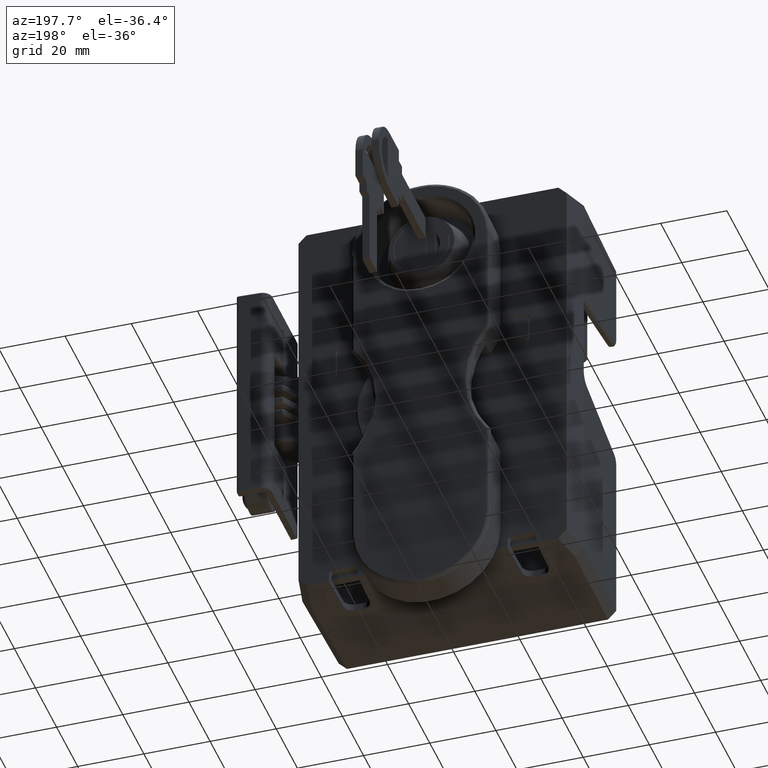
[diagram: clean part render]
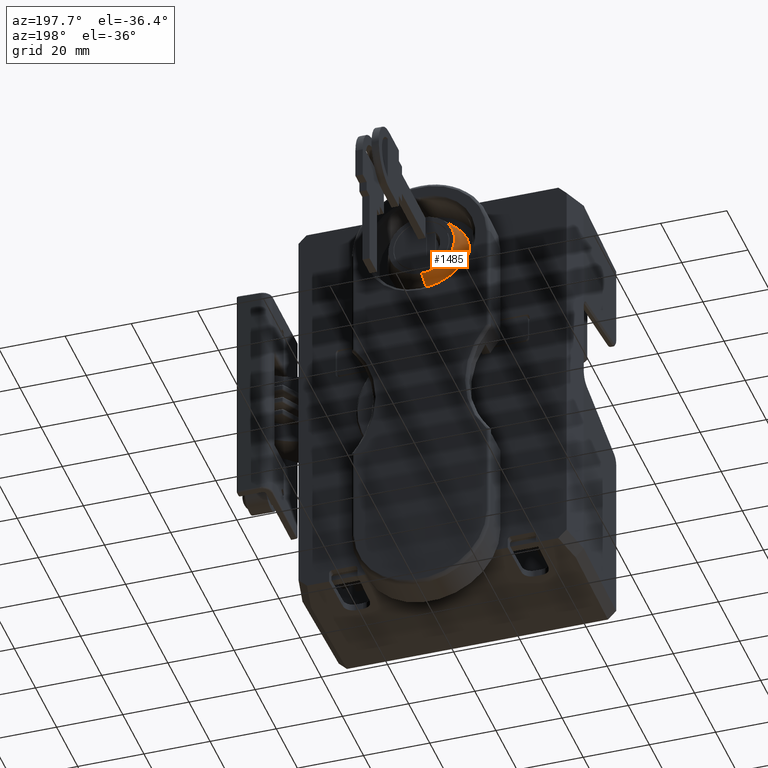
[diagram: same view with one face highlighted and labeled with its STEP entity id]
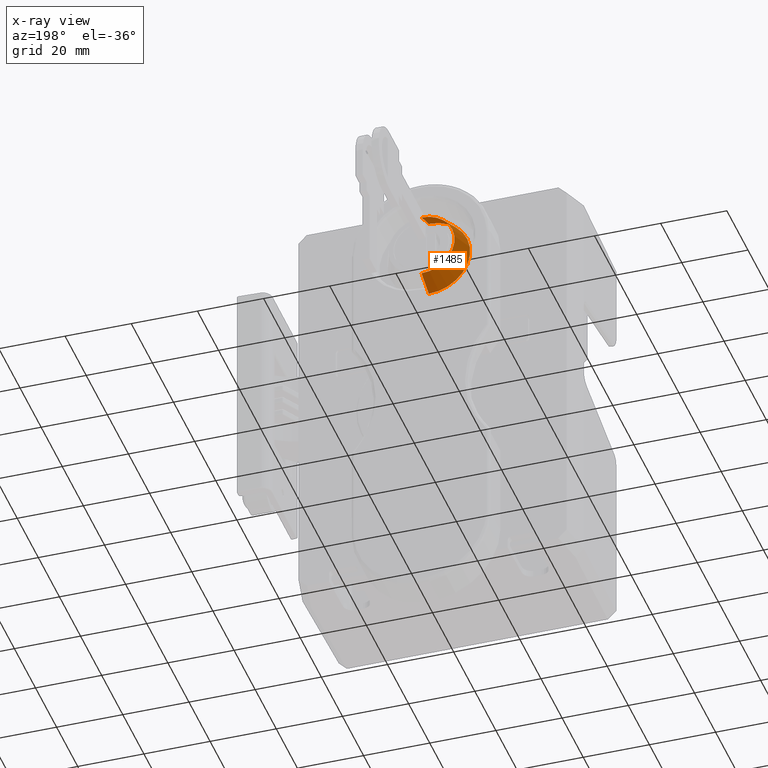
[diagram: x-ray of the same camera — body ghosted, the highlighted face saturated]
A machine part, auxiliary view. The second image highlights one B-rep face of the part: STEP entity #1485.
The next image is the same camera in x-ray: the body ghosted, the highlighted face saturated — about 0% of this face is hidden behind the body in this view.
In plain terms, the highlighted face is a freeform B-spline surface patch.
Its self-contained STEP definition (entity closure, byte-faithful):
#1485=ADVANCED_FACE('',(#12530),#12529,.T.);
#12529=( BOUNDED_SURFACE() B_SPLINE_SURFACE( 2,1,((#24685,#24686),(#24687,#24688),(#24689,#24690),(#24691,#24692),(#24693,#24694)), .UNSPECIFIED.,.F.,.F.,.F.) B_SPLINE_SURFACE_WITH_KNOTS((3,2,3),(2,2),(0.00000000000E+00,5.00000000000E-01,1.00000000000E+00),(0.00000000000E+00,1.00000000000E+00), .UNSPECIFIED. ) GEOMETRIC_REPRESENTATION_ITEM() RATIONAL_B_SPLINE_SURFACE(((1.00000000000E+00,1.00000000000E+00),(7.07106781187E-01,7.07106781187E-01),(1.00000000000E+00,1.00000000000E+00),(7.07106781187E-01,7.07106781187E-01),(1.00000000000E+00,1.00000000000E+00))) REPRESENTATION_ITEM('') SURFACE() );
#12530=FACE_OUTER_BOUND('',#24695,.T.);
#24685=CARTESIAN_POINT('',(-1.03149418726E-15,-8.90000000106E+00,9.98860538355E+00));
#24686=CARTESIAN_POINT('',(-4.16379911579E-16,-2.00000000108E+00,1.25000000000E+01));
#24687=CARTESIAN_POINT('',(9.98860538355E+00,-8.90000000106E+00,9.98860538355E+00));
#24688=CARTESIAN_POINT('',(1.25000000000E+01,-2.00000000108E+00,1.25000000000E+01));
#24689=CARTESIAN_POINT('',(9.98860538355E+00,-8.90000000106E+00,-1.83487704164E-15));
#24690=CARTESIAN_POINT('',(1.25000000000E+01,-2.00000000108E+00,-2.29621274840E-15));
#24691=CARTESIAN_POINT('',(9.98860538355E+00,-8.90000000106E+00,-9.98860538355E+00));
#24692=CARTESIAN_POINT('',(1.25000000000E+01,-2.00000000108E+00,-1.25000000000E+01));
#24693=CARTESIAN_POINT('',(-4.70124827054E-15,-8.90000000106E+00,-9.98860538355E+00));
#24694=CARTESIAN_POINT('',(-5.00880540838E-15,-2.00000000108E+00,-1.25000000000E+01));
#24695=EDGE_LOOP('',(#33882,#33883,#33884,#33885));
#33882=ORIENTED_EDGE('',*,*,#39580,.F.);
#33883=ORIENTED_EDGE('',*,*,#39581,.F.);
#33884=ORIENTED_EDGE('',*,*,#39144,.T.);
#33885=ORIENTED_EDGE('',*,*,#39582,.T.);
#39144=EDGE_CURVE('',#56471,#56472,#56473,.T.);
#39580=EDGE_CURVE('',#59369,#59370,#59371,.T.);
#39581=EDGE_CURVE('',#56471,#59369,#59377,.T.);
#39582=EDGE_CURVE('',#56472,#59370,#59383,.T.);
#56471=VERTEX_POINT('',#78225);
#56472=VERTEX_POINT('',#78226);
#56473=CIRCLE('',#78230,9.98860538355E+00);
#59369=VERTEX_POINT('',#80007);
#59370=VERTEX_POINT('',#80008);
#59371=CIRCLE('',#80012,1.25000000000E+01);
#59377=(BOUNDED_CURVE() B_SPLINE_CURVE(1,(#80013,#80014),.UNSPECIFIED.,.F.,.F.) B_SPLINE_CURVE_WITH_KNOTS((2,2),(0.00000000000E+00,1.00000000000E+00),.UNSPECIFIED.) CURVE() GEOMETRIC_REPRESENTATION_ITEM() RATIONAL_B_SPLINE_CURVE((1.00000000000E+00,1.00000000000E+00)) REPRESENTATION_ITEM('') );
#59383=(BOUNDED_CURVE() B_SPLINE_CURVE(1,(#80015,#80016),.UNSPECIFIED.,.F.,.F.) B_SPLINE_CURVE_WITH_KNOTS((2,2),(0.00000000000E+00,1.00000000000E+00),.UNSPECIFIED.) CURVE() GEOMETRIC_REPRESENTATION_ITEM() RATIONAL_B_SPLINE_CURVE((7.50000000000E-01,7.50000000000E-01)) REPRESENTATION_ITEM('') );
#78225=CARTESIAN_POINT('',(-4.14483262527E-15,-8.90000000106E+00,9.98860538355E+00));
#78226=CARTESIAN_POINT('',(-3.47799690945E-15,-8.90000000106E+00,-9.98860538355E+00));
#78227=CARTESIAN_POINT('',(-3.47799690945E-15,-8.90000000106E+00,0.00000000000E+00));
#78228=DIRECTION('',(0.00000000000E+00,1.00000000000E+00,0.00000000000E+00));
#78229=DIRECTION('',(1.22460635382E-16,0.00000000000E+00,-1.00000000000E+00));
#78230=AXIS2_PLACEMENT_3D('',#78227,#78228,#78229);
#80007=CARTESIAN_POINT('',(-3.55271367880E-15,-2.00000000108E+00,1.25000000000E+01));
#80008=CARTESIAN_POINT('',(-3.47799690945E-15,-2.00000000108E+00,-1.25000000000E+01));
#80009=CARTESIAN_POINT('',(-3.47799690945E-15,-2.00000000108E+00,0.00000000000E+00));
#80010=DIRECTION('',(0.00000000000E+00,1.00000000000E+00,0.00000000000E+00));
#80011=DIRECTION('',(1.22460635382E-16,0.00000000000E+00,-1.00000000000E+00));
#80012=AXIS2_PLACEMENT_3D('',#80009,#80010,#80011);
#80013=CARTESIAN_POINT('',(-1.03157498574E-15,-8.90000000106E+00,9.98860538355E+00));
#80014=CARTESIAN_POINT('',(-4.16481024891E-16,-2.00000000108E+00,1.25000000000E+01));
#80015=CARTESIAN_POINT('',(-7.10542735760E-15,-8.90000000106E+00,-9.98860538355E+00));
#80016=CARTESIAN_POINT('',(-7.10542735760E-15,-2.00000000108E+00,-1.25000000000E+01));